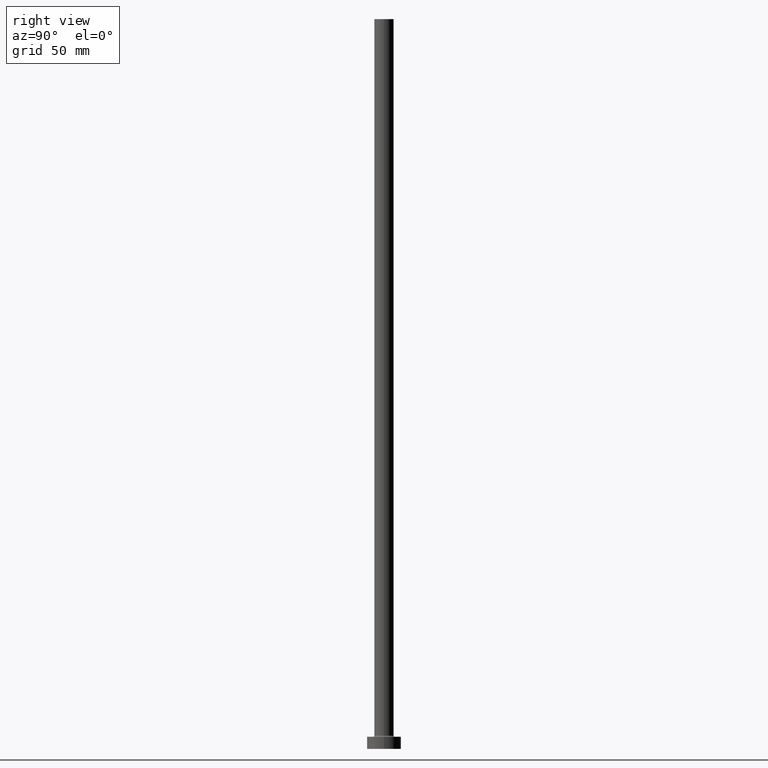
[diagram: clean part render]
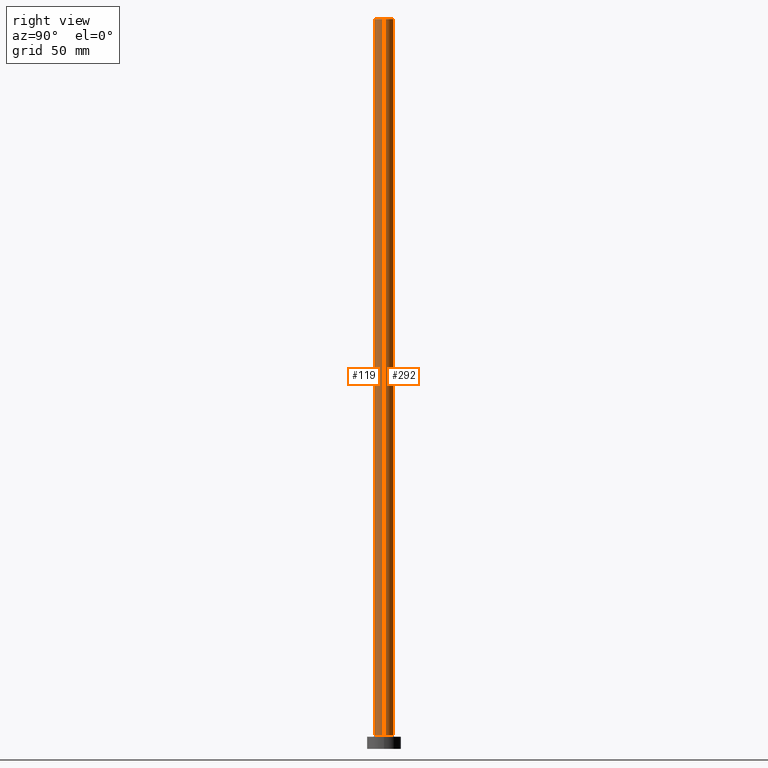
[diagram: same view with one multi-face feature highlighted, each face labeled with its STEP entity id]
A machine part, right view. The highlighted faces form ONE feature: a constant-radius fillet chain: 2 tangent blend faces with common blend radius 4 mm. The faces share edges in the B-rep.
Their STEP definitions:
[1] entity #292 (Cylinder):
#5 = DIRECTION ( 'NONE',  ( 0.000000000000000000, 0.000000000000000000, 1.000000000000000000 ) ) ;
#9 = DIRECTION ( 'NONE',  ( -0.000000000000000000, -0.000000000000000000, -1.000000000000000000 ) ) ;
#42 = AXIS2_PLACEMENT_3D ( 'NONE', #324, #5, #71 ) ;
#71 = DIRECTION ( 'NONE',  ( 1.000000000000000000, 0.000000000000000000, 0.000000000000000000 ) ) ;
#81 = EDGE_LOOP ( 'NONE', ( #139, #426, #277, #113 ) ) ;
#89 = VERTEX_POINT ( 'NONE', #418 ) ;
#90 = VECTOR ( 'NONE', #9, 1000.000000000000000 ) ;
#92 = VERTEX_POINT ( 'NONE', #177 ) ;
#113 = ORIENTED_EDGE ( 'NONE', *, *, #162, .F. ) ;
#122 = CYLINDRICAL_SURFACE ( 'NONE', #294, 4.000000000000000000 ) ;
#139 = ORIENTED_EDGE ( 'NONE', *, *, #335, .F. ) ;
#158 = FACE_OUTER_BOUND ( 'NONE', #81, .T. ) ;
#162 = EDGE_CURVE ( 'NONE', #393, #89, #274, .T. ) ;
#174 = CIRCLE ( 'NONE', #364, 4.000000000000000000 ) ;
#177 = CARTESIAN_POINT ( 'NONE',  ( 4.000000000000000000, 4.898587196589412829E-16, 5.500000000000005329 ) ) ;
#181 = VECTOR ( 'NONE', #315, 1000.000000000000000 ) ;
#191 = VERTEX_POINT ( 'NONE', #297 ) ;
#199 = DIRECTION ( 'NONE',  ( -0.000000000000000000, -0.000000000000000000, -1.000000000000000000 ) ) ;
#202 = CIRCLE ( 'NONE', #42, 4.000000000000000000 ) ;
#223 = CARTESIAN_POINT ( 'NONE',  ( -4.000000000000000000, 0.000000000000000000, 300.0000000000000000 ) ) ;
#228 = DIRECTION ( 'NONE',  ( -1.000000000000000000, 0.000000000000000000, 0.000000000000000000 ) ) ;
#274 = LINE ( 'NONE', #223, #90 ) ;
#275 = DIRECTION ( 'NONE',  ( 1.000000000000000000, 0.000000000000000000, 0.000000000000000000 ) ) ;
#277 = ORIENTED_EDGE ( 'NONE', *, *, #427, .T. ) ;
#287 = CARTESIAN_POINT ( 'NONE',  ( 4.000000000000000000, 4.898587196589412829E-16, 300.0000000000000000 ) ) ;
#292 = ADVANCED_FACE ( 'NONE', ( #158 ), #122, .T. ) ;
#294 = AXIS2_PLACEMENT_3D ( 'NONE', #408, #199, #228 ) ;
#297 = CARTESIAN_POINT ( 'NONE',  ( 4.000000000000000000, 4.898587196589412829E-16, 300.0000000000000000 ) ) ;
#315 = DIRECTION ( 'NONE',  ( -0.000000000000000000, -0.000000000000000000, -1.000000000000000000 ) ) ;
#324 = CARTESIAN_POINT ( 'NONE',  ( 0.000000000000000000, 0.000000000000000000, 5.500000000000005329 ) ) ;
#335 = EDGE_CURVE ( 'NONE', #191, #393, #174, .T. ) ;
#355 = LINE ( 'NONE', #287, #181 ) ;
#362 = CARTESIAN_POINT ( 'NONE',  ( -4.000000000000000000, 0.000000000000000000, 300.0000000000000000 ) ) ;
#364 = AXIS2_PLACEMENT_3D ( 'NONE', #385, #431, #275 ) ;
#385 = CARTESIAN_POINT ( 'NONE',  ( 0.000000000000000000, 0.000000000000000000, 300.0000000000000000 ) ) ;
#393 = VERTEX_POINT ( 'NONE', #362 ) ;
#408 = CARTESIAN_POINT ( 'NONE',  ( 0.000000000000000000, 0.000000000000000000, 300.0000000000000000 ) ) ;
#418 = CARTESIAN_POINT ( 'NONE',  ( -4.000000000000000000, 0.000000000000000000, 5.500000000000005329 ) ) ;
#426 = ORIENTED_EDGE ( 'NONE', *, *, #435, .T. ) ;
#427 = EDGE_CURVE ( 'NONE', #92, #89, #202, .T. ) ;
#431 = DIRECTION ( 'NONE',  ( 0.000000000000000000, 0.000000000000000000, 1.000000000000000000 ) ) ;
#435 = EDGE_CURVE ( 'NONE', #191, #92, #355, .T. ) ;
[2] entity #119 (Cylinder):
#3 = AXIS2_PLACEMENT_3D ( 'NONE', #88, #458, #445 ) ;
#9 = DIRECTION ( 'NONE',  ( -0.000000000000000000, -0.000000000000000000, -1.000000000000000000 ) ) ;
#32 = AXIS2_PLACEMENT_3D ( 'NONE', #358, #137, #307 ) ;
#38 = DIRECTION ( 'NONE',  ( 1.000000000000000000, 0.000000000000000000, 0.000000000000000000 ) ) ;
#39 = EDGE_LOOP ( 'NONE', ( #258, #239, #219, #423 ) ) ;
#88 = CARTESIAN_POINT ( 'NONE',  ( 0.000000000000000000, 0.000000000000000000, 5.500000000000005329 ) ) ;
#89 = VERTEX_POINT ( 'NONE', #418 ) ;
#90 = VECTOR ( 'NONE', #9, 1000.000000000000000 ) ;
#92 = VERTEX_POINT ( 'NONE', #177 ) ;
#119 = ADVANCED_FACE ( 'NONE', ( #145 ), #285, .T. ) ;
#137 = DIRECTION ( 'NONE',  ( -0.000000000000000000, -0.000000000000000000, -1.000000000000000000 ) ) ;
#145 = FACE_OUTER_BOUND ( 'NONE', #39, .T. ) ;
#155 = EDGE_CURVE ( 'NONE', #89, #92, #195, .T. ) ;
#162 = EDGE_CURVE ( 'NONE', #393, #89, #274, .T. ) ;
#177 = CARTESIAN_POINT ( 'NONE',  ( 4.000000000000000000, 4.898587196589412829E-16, 5.500000000000005329 ) ) ;
#181 = VECTOR ( 'NONE', #315, 1000.000000000000000 ) ;
#191 = VERTEX_POINT ( 'NONE', #297 ) ;
#195 = CIRCLE ( 'NONE', #3, 4.000000000000000000 ) ;
#219 = ORIENTED_EDGE ( 'NONE', *, *, #162, .T. ) ;
#223 = CARTESIAN_POINT ( 'NONE',  ( -4.000000000000000000, 0.000000000000000000, 300.0000000000000000 ) ) ;
#232 = CIRCLE ( 'NONE', #389, 4.000000000000000000 ) ;
#236 = CARTESIAN_POINT ( 'NONE',  ( 0.000000000000000000, 0.000000000000000000, 300.0000000000000000 ) ) ;
#239 = ORIENTED_EDGE ( 'NONE', *, *, #414, .F. ) ;
#258 = ORIENTED_EDGE ( 'NONE', *, *, #435, .F. ) ;
#274 = LINE ( 'NONE', #223, #90 ) ;
#285 = CYLINDRICAL_SURFACE ( 'NONE', #32, 4.000000000000000000 ) ;
#287 = CARTESIAN_POINT ( 'NONE',  ( 4.000000000000000000, 4.898587196589412829E-16, 300.0000000000000000 ) ) ;
#297 = CARTESIAN_POINT ( 'NONE',  ( 4.000000000000000000, 4.898587196589412829E-16, 300.0000000000000000 ) ) ;
#307 = DIRECTION ( 'NONE',  ( -1.000000000000000000, 0.000000000000000000, 0.000000000000000000 ) ) ;
#315 = DIRECTION ( 'NONE',  ( -0.000000000000000000, -0.000000000000000000, -1.000000000000000000 ) ) ;
#355 = LINE ( 'NONE', #287, #181 ) ;
#358 = CARTESIAN_POINT ( 'NONE',  ( 0.000000000000000000, 0.000000000000000000, 300.0000000000000000 ) ) ;
#362 = CARTESIAN_POINT ( 'NONE',  ( -4.000000000000000000, 0.000000000000000000, 300.0000000000000000 ) ) ;
#389 = AXIS2_PLACEMENT_3D ( 'NONE', #236, #428, #38 ) ;
#393 = VERTEX_POINT ( 'NONE', #362 ) ;
#414 = EDGE_CURVE ( 'NONE', #393, #191, #232, .T. ) ;
#418 = CARTESIAN_POINT ( 'NONE',  ( -4.000000000000000000, 0.000000000000000000, 5.500000000000005329 ) ) ;
#423 = ORIENTED_EDGE ( 'NONE', *, *, #155, .T. ) ;
#428 = DIRECTION ( 'NONE',  ( 0.000000000000000000, 0.000000000000000000, 1.000000000000000000 ) ) ;
#435 = EDGE_CURVE ( 'NONE', #191, #92, #355, .T. ) ;
#445 = DIRECTION ( 'NONE',  ( 1.000000000000000000, 0.000000000000000000, 0.000000000000000000 ) ) ;
#458 = DIRECTION ( 'NONE',  ( 0.000000000000000000, 0.000000000000000000, 1.000000000000000000 ) ) ;